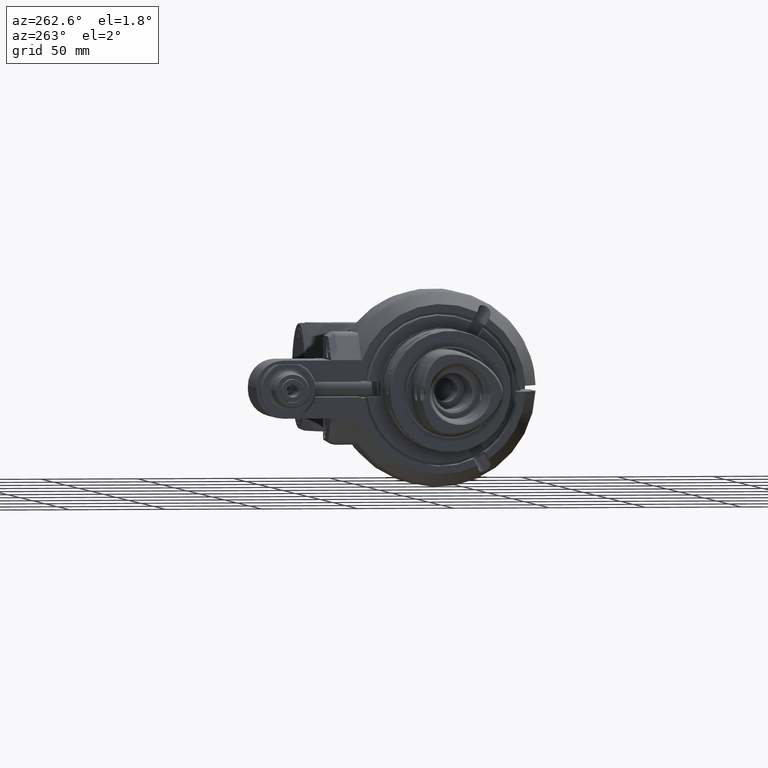
[diagram: clean part render]
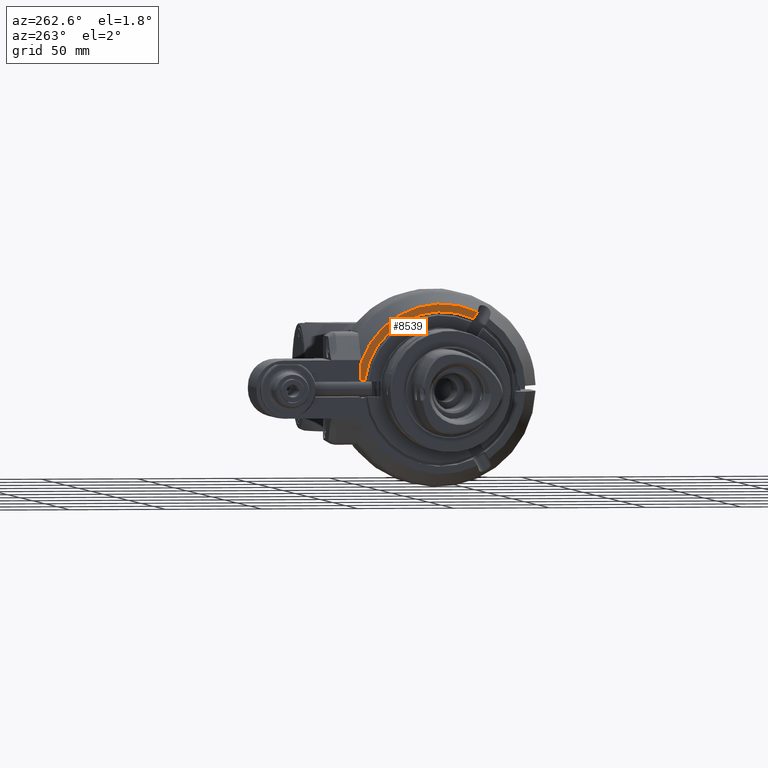
[diagram: same view with one face highlighted and labeled with its STEP entity id]
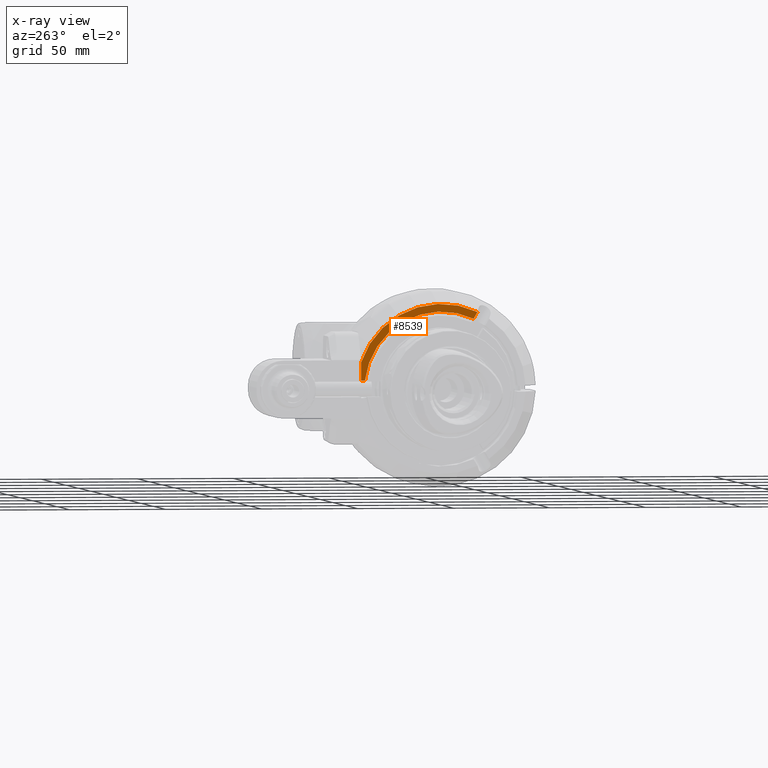
[diagram: x-ray of the same camera — body ghosted, the highlighted face saturated]
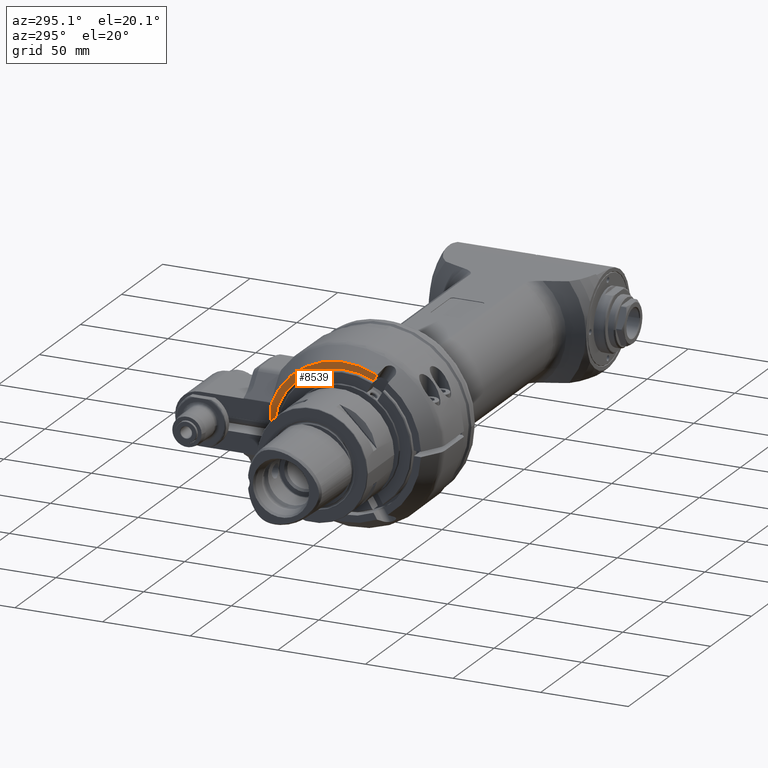
[diagram: same view with one face highlighted and labeled with its STEP entity id]
A machine part, auxiliary view. The second image highlights one B-rep face of the part: STEP entity #8539.
The next image is the same camera in x-ray: the body ghosted, the highlighted face saturated — about 0% of this face is hidden behind the body in this view.
A second angle (auxiliary view) of the same face is appended — the face is thin or edge-on in the first view.
In plain terms, the highlighted planar face has unit normal (-1, 0, 0).
Its self-contained STEP definition (entity closure, byte-faithful):
#369=PLANE('',#9167);
#739=FACE_OUTER_BOUND('',#1278,.T.);
#1278=EDGE_LOOP('',(#5971,#5972,#5973,#5974,#5975));
#1859=CIRCLE('',#9132,1.5748031496063);
#1866=CIRCLE('',#9144,1.73228346456693);
#2439=LINE('',#12558,#2995);
#2462=LINE('',#12805,#3018);
#2487=LINE('',#13012,#3043);
#2995=VECTOR('',#10066,0.369692692247598);
#3018=VECTOR('',#10161,0.0788949217317323);
#3043=VECTOR('',#10258,0.158031250781373);
#3557=VERTEX_POINT('',#12555);
#3558=VERTEX_POINT('',#12557);
#3595=VERTEX_POINT('',#12802);
#3599=VERTEX_POINT('',#12820);
#3610=VERTEX_POINT('',#12896);
#4427=EDGE_CURVE('',#3558,#3557,#2439,.T.);
#4484=EDGE_CURVE('',#3595,#3557,#2462,.T.);
#4488=EDGE_CURVE('',#3595,#3599,#1859,.T.);
#4505=EDGE_CURVE('',#3610,#3558,#1866,.T.);
#4538=EDGE_CURVE('',#3599,#3610,#2487,.T.);
#5971=ORIENTED_EDGE('',*,*,#4538,.T.);
#5972=ORIENTED_EDGE('',*,*,#4505,.T.);
#5973=ORIENTED_EDGE('',*,*,#4427,.T.);
#5974=ORIENTED_EDGE('',*,*,#4484,.F.);
#5975=ORIENTED_EDGE('',*,*,#4488,.T.);
#8539=ADVANCED_FACE('',(#739),#369,.T.);
#9132=AXIS2_PLACEMENT_3D('',#12822,#10166,#10167);
#9144=AXIS2_PLACEMENT_3D('',#12897,#10196,#10197);
#9167=AXIS2_PLACEMENT_3D('',#13013,#10259,#10260);
#10066=DIRECTION('',(0.,0.,-1.));
#10161=DIRECTION('',(0.,1.,0.));
#10166=DIRECTION('center_axis',(1.,0.,0.));
#10167=DIRECTION('ref_axis',(0.,0.99365172470036,0.112499999999996));
#10196=DIRECTION('center_axis',(-1.,0.,0.));
#10197=DIRECTION('ref_axis',(0.,-0.429527235513105,0.90305390423411));
#10258=DIRECTION('',(0.,-0.500000000000017,0.866025403784429));
#10259=DIRECTION('center_axis',(-1.,0.,0.));
#10260=DIRECTION('ref_axis',(0.,-1.,0.));
#12555=CARTESIAN_POINT('',(-1.55511811023622,1.64370078740157,0.177165354330709));
#12557=CARTESIAN_POINT('',(-1.55511811023622,1.64370078740157,0.546858046578346));
#12558=CARTESIAN_POINT('',(-1.55511811023622,1.64370078740157,0.546858046578346));
#12802=CARTESIAN_POINT('',(-1.55511811023622,1.56480586566969,0.177165354330709));
#12805=CARTESIAN_POINT('',(-1.55511811023622,1.56480586566969,0.177165354330709));
#12820=CARTESIAN_POINT('',(-1.55511811023622,-0.665047302269685,1.42748626814882));
#12822=CARTESIAN_POINT('Origin',(-1.55511811023622,0.,0.));
#12896=CARTESIAN_POINT('',(-1.55511811023622,-0.744062927660236,1.56434534591732));
#12897=CARTESIAN_POINT('Origin',(-1.55511811023622,0.,0.));
#13012=CARTESIAN_POINT('',(-1.55511811023622,-0.665047302269685,1.42748626814882));
#13013=CARTESIAN_POINT('Origin',(-1.55511811023622,-1.60433070866142,0.));